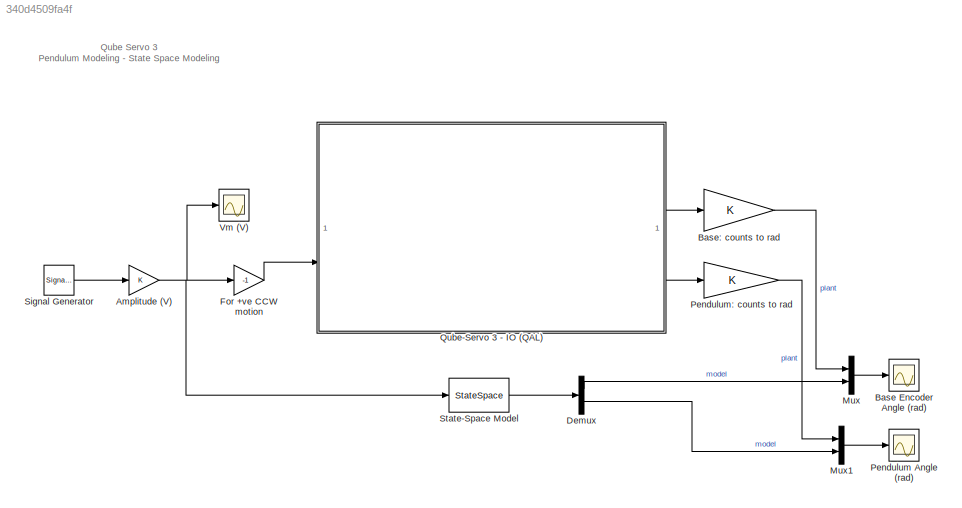
MODEL slx_340d4509fa4f
KIND model
CONFIG AbsTol = auto
CONFIG EnableMultiTasking = on
CONFIG FixedStep = 0.002
CONFIG MaxStep = auto
CONFIG MinStep = auto
CONFIG RelTol = 1e-3
CONFIG SampleTimeConstraint = Unconstrained
CONFIG SolverName = ode4
CONFIG StartTime = 0.0
CONFIG StopTime = inf
BLOCK [Gain] Amplitude (V)
BLOCK [Scope] Base Encoder Angle (rad)
  Floating = off
  NumInputPorts = 1
  ScopeSpecificationString = Simulink.scopes.TimeScopeBlockCfg('CurrentConfiguration', extmgr.ConfigurationSet(extmgr.Configuration('Core','General UI',true),extmgr.Configuration('Core','Source UI',true),extmgr.Configuration('Sources','WiredSimulink',true,'DataLogging',true,'DataLoggingVariableName','data_theta','DataLoggingSaveFormat','Array'),extmgr.Configuration('Visuals','Time Domain',true,'SerializedDisplays',{struct('Mi...<+1463ch>
BLOCK [Gain] Base: counts to rad
BLOCK [Demux] Demux
  Outputs = 2
BLOCK [Gain] For +ve CCW motion
  Gain = -1
BLOCK [Mux] Mux
  DisplayOption = bar
  Inputs = 2
BLOCK [Mux] Mux1
  DisplayOption = bar
  Inputs = 2
BLOCK [Scope] Pendulum Angle (rad)
  Floating = off
  NumInputPorts = 1
  ScopeSpecificationString = Simulink.scopes.TimeScopeBlockCfg('CurrentConfiguration', extmgr.ConfigurationSet(extmgr.Configuration('Core','General UI',true),extmgr.Configuration('Core','Source UI',true),extmgr.Configuration('Sources','WiredSimulink',true,'DataLoggingVariableName','data_alpha','DataLogging',true,'DataLoggingSaveFormat','Array'),extmgr.Configuration('Visuals','Time Domain',true,'SerializedDisplays',{struct('Mi...<+1464ch>
BLOCK [Gain] Pendulum: counts to rad
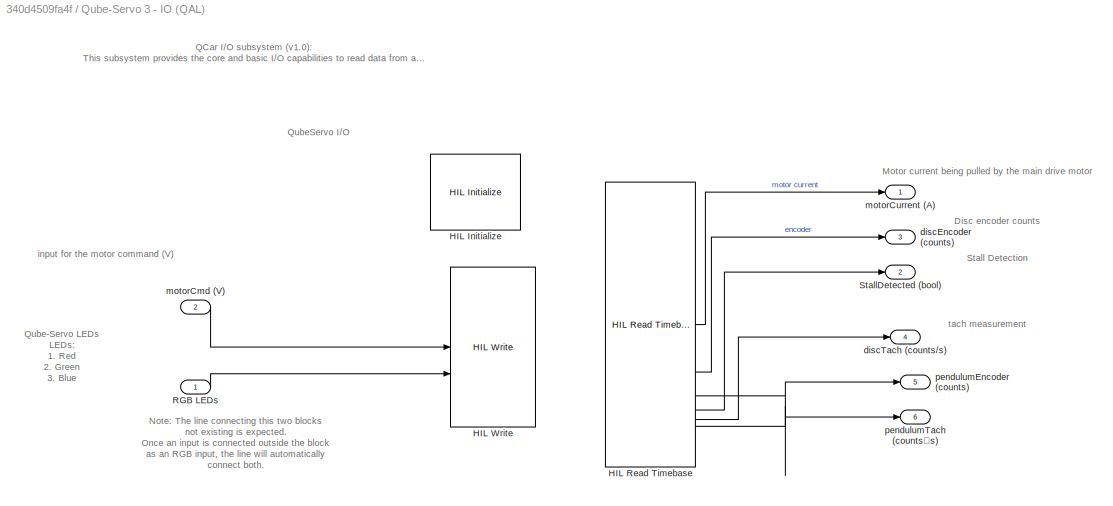
BLOCK [SubSystem] Qube-Servo 3 - IO (QAL)
  CopyFcn = set_param(gcbh,'LinkStatus','none');
  UserDataPersistent = on
BLOCK [Reference] Qube-Servo 3 - IO (QAL)/HIL Initialize  REF=quarc_library/Data Acquisition/Generic/Configuration/HIL Initialize
  AttributesFormatString = %<object_name> (%<board_type>-%<board_number>)
  SourceBlock = quarc_library/Data Acquisition/Generic/Configuration/HIL Initialize
  SourceProductName = QUARC Targets
  SourceType = HIL Initialize
  UserDataPersistent = on
BLOCK [Reference] Qube-Servo 3 - IO (QAL)/HIL Read Timebase  REF=quarc_library/Data Acquisition/Generic/Timebases/HIL Read
Timebase
  AttributesFormatString = (%<object_name>)
  SourceBlock = quarc_library/Data Acquisition/Generic/Timebases/HIL Read\nTimebase
  SourceProductName = QUARC Targets
  SourceType = HIL Read Timebase
  UserDataPersistent = on
BLOCK [Reference] Qube-Servo 3 - IO (QAL)/HIL Write  REF=quarc_library/Data Acquisition/Generic/Immediate I//O/HIL Write
  AttributesFormatString = (%<object_name>)
  SourceBlock = quarc_library/Data Acquisition/Generic/Immediate I//O/HIL Write
  SourceProductName = QUARC Targets
  SourceType = HIL Write
  UserDataPersistent = on
BLOCK [Inport] Qube-Servo 3 - IO (QAL)/RGB LEDs
BLOCK [Outport] Qube-Servo 3 - IO (QAL)/StallDetected (bool)
  Port = 2
  VectorParamsAs1DForOutWhenUnconnected = off
BLOCK [Outport] Qube-Servo 3 - IO (QAL)/discEncoder (counts)
  Port = 3
  VectorParamsAs1DForOutWhenUnconnected = off
BLOCK [Outport] Qube-Servo 3 - IO (QAL)/discTach (counts//s)
  Port = 4
  VectorParamsAs1DForOutWhenUnconnected = off
BLOCK [Inport] Qube-Servo 3 - IO (QAL)/motorCmd (V)
  Port = 2
BLOCK [Outport] Qube-Servo 3 - IO (QAL)/motorCurrent (A)
  VectorParamsAs1DForOutWhenUnconnected = off
BLOCK [Outport] Qube-Servo 3 - IO (QAL)/pendulumEncoder (counts)
  Port = 5
BLOCK [Outport] Qube-Servo 3 - IO (QAL)/pendulumTach (counts／s)
  Port = 6
BLOCK [SignalGenerator] Signal Generator
  WaveForm = square
BLOCK [StateSpace] State-Space Model
  A = A
  B = B
  C = C
  D = D
  InitialCondition = [0 0 0 0]
BLOCK [Scope] Vm (V)
  Floating = off
  NumInputPorts = 1
  ScopeSpecificationString = Simulink.scopes.TimeScopeBlockCfg('CurrentConfiguration', extmgr.ConfigurationSet(extmgr.Configuration('Core','General UI',true),extmgr.Configuration('Core','Source UI',true),extmgr.Configuration('Sources','WiredSimulink',true,'DataLoggingVariableName','data_vm','DataLogging',true,'DataLoggingSaveFormat','Array'),extmgr.Configuration('Visuals','Time Domain',true,'SerializedDisplays',{struct('MinYL...<+1444ch>
ANNOTATION (root): Qube Servo 3 Pendulum Modeling - State Space Modeling
ANNOTATION Qube-Servo 3 - IO (QAL): QCar I/O subsystem (v1.0): This subsystem provides the core and basic I/O capabilities to read data from and write data to the Qube Servo. The HIL Initialize block configures the IO settings, and the HIL Write and Read blocks are used for the actual IO.
ANNOTATION Qube-Servo 3 - IO (QAL): Disc encoder counts
ANNOTATION Qube-Servo 3 - IO (QAL): Stall Detection
ANNOTATION Qube-Servo 3 - IO (QAL): tach measurement
ANNOTATION Qube-Servo 3 - IO (QAL): Motor current being pulled by the main drive motor
ANNOTATION Qube-Servo 3 - IO (QAL): Qube-Servo LEDs LEDs: 1. Red 2. Green 3. Blue
ANNOTATION Qube-Servo 3 - IO (QAL): input for the motor command (V)
ANNOTATION Qube-Servo 3 - IO (QAL): Note: The line connecting this two blocks not existing is expected. Once an input is connected outside the block as an RGB input, the line will automatically connect both.
ANNOTATION Qube-Servo 3 - IO (QAL): QubeServo I/O
NET Amplitude (V):1 -> For +ve CCW motion:1, State-Space Model:1, Vm (V):1
LINE Base: counts to rad:1 -> Mux:1
LINE Demux:1 -> Mux:2
LINE Demux:2 -> Mux1:2
LINE For +ve CCW motion:1 -> Qube-Servo 3 - IO (QAL):2
LINE Mux1:1 -> Pendulum Angle (rad):1
LINE Mux:1 -> Base Encoder Angle (rad):1
LINE Pendulum: counts to rad:1 -> Mux1:1
LINE Qube-Servo 3 - IO (QAL):3 -> Base: counts to rad:1
LINE Qube-Servo 3 - IO (QAL):5 -> Pendulum: counts to rad:1
LINE Signal Generator:1 -> Amplitude (V):1
LINE State-Space Model:1 -> Demux:1
note: NET lines group one-source signal fan-out (src -> all destinations, sorted); 1:1 wires keep LINE
